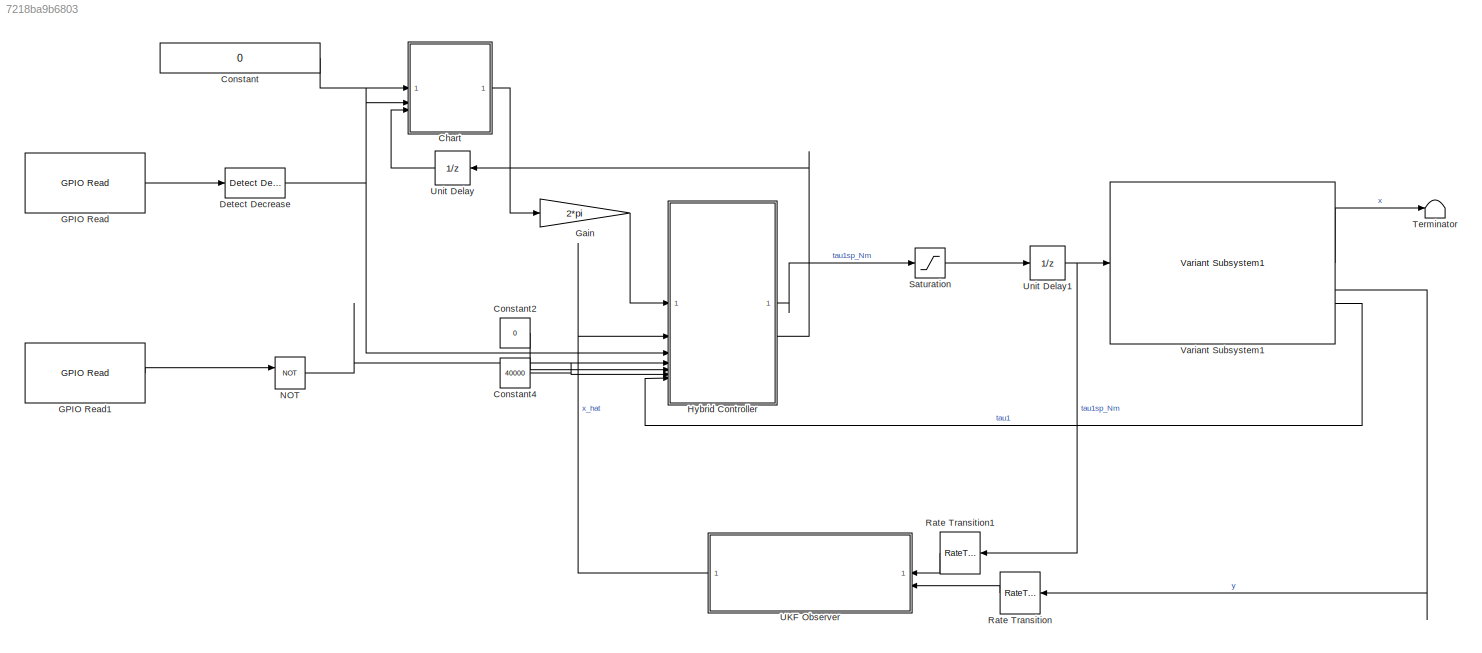
MODEL slx_7218ba9b6803
KIND model
CONFIG AbsTol = auto
CONFIG EnableMultiTasking = on
CONFIG FixedStep = 0.001
CONFIG InitFcn = if isempty(matlab.project.rootProject)\n    openProject('<userpath>/MATLAB/projects/digtwin_labo/digtwin_labo.prj');\nend\nprj = matlab.project.rootProject;\n\n%% Physical parameters\nload(fullfile(prj.RootFolder, 'data', 'RRpendulum_params_BLDC.mat'), 'params');\n\n%% Controller design (LQR gains)\nload(fullfile(prj.RootFolder, 'data', 'FSFB_torque_design.mat'), 'design');\nfsf_par = design.par;\n\n%% UKF ob...<+252ch>
CONFIG MaxStep = auto
CONFIG MinStep = auto
CONFIG PreLoadFcn = clear;\n\nif isempty(matlab.project.rootProject)\n    openProject('<userpath>/MATLAB/projects/digtwin_labo/digtwin_labo.prj');\nend\nprj = matlab.project.rootProject;\n\n%% Physical parameters\nload(fullfile(prj.RootFolder, 'data', 'RRpendulum_params_BLDC.mat'), 'params');\n\n%% Controller design (LQR gains)\nload(fullfile(prj.RootFolder, 'data', 'FSFB_torque_design.mat'), 'design');\nfsf_par = design.par;\n\n%...<+260ch>
CONFIG RelTol = 1e-3
CONFIG SampleTimeConstraint = Unconstrained
CONFIG SolverName = FixedStepAuto
CONFIG StartTime = 0.0
CONFIG StopTime = inf
WORKSPACE source: mxarray member
WORKSPACE COUNTS_PER_TURN_MOT = 8192
WORKSPACE COUNTS_PER_TURN_PEND = 2400
WORKSPACE MOTOR_VEL_RESOLUTION_DIV = 4
WORKSPACE PEND_VEL_RESOLUTION_DIV = 1
WORKSPACE T_SAMPLE = 0.001
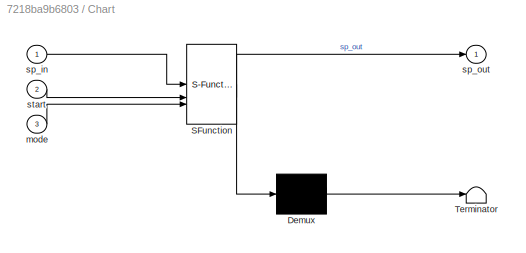
BLOCK [SubSystem] Chart
  ErrorFcn = Stateflow.Translate.translate
  PermitHierarchicalResolution = ExplicitOnly
  SFBlockType = Chart
  TreatAsAtomicUnit = on
BLOCK [Demux] Chart/ Demux 
  Outputs = 1
BLOCK [S-Function] Chart/ SFunction 
  EnableBusSupport = off
  FunctionName = sf_sfun
  PortCounts = [3 2]
  SFcnIsStateOwnerBlock = off
  SFunctionDeploymentMode = off
  Tag = Stateflow S-Function 5
BLOCK [Terminator] Chart/ Terminator 
BLOCK [Inport] Chart/mode
  Port = 3
BLOCK [Inport] Chart/sp_in
BLOCK [Outport] Chart/sp_out
BLOCK [Inport] Chart/start
  Port = 2
BLOCK [Constant] Constant
  Value = 0
BLOCK [Constant] Constant2
  Value = 0
BLOCK [Constant] Constant4
  Value = 40000
BLOCK [Reference] Detect Decrease  REF=simulink/Logic and Bit
Operations/Detect
Decrease
  SourceBlock = simulink/Logic and Bit\nOperations/Detect\nDecrease
  SourceType = Detect Decrease
BLOCK [Reference] GPIO Read  REF=raspberrypiBasiclib/GPIO Read
  SourceBlock = raspberrypiBasiclib/GPIO Read
  SourceType = codertarget.raspi.internal.RaspiGPIORead
BLOCK [Reference] GPIO Read1  REF=raspberrypiBasiclib/GPIO Read
  SourceBlock = raspberrypiBasiclib/GPIO Read
  SourceType = codertarget.raspi.internal.RaspiGPIORead
BLOCK [Gain] Gain
  Gain = 2*pi
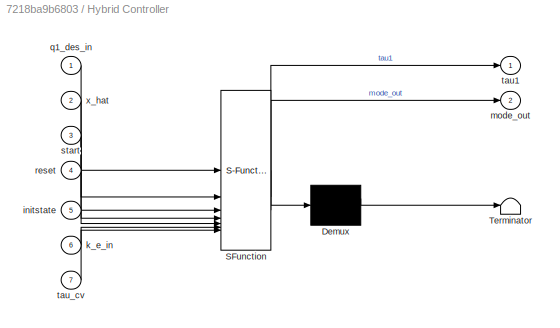
BLOCK [SubSystem] Hybrid Controller
  ErrorFcn = Stateflow.Translate.translate
  PermitHierarchicalResolution = ExplicitOnly
  SFBlockType = MATLAB Function
  TreatAsAtomicUnit = on
BLOCK [Demux] Hybrid Controller/ Demux 
  Outputs = 1
BLOCK [S-Function] Hybrid Controller/ SFunction 
  EnableBusSupport = off
  FunctionName = sf_sfun
  Parameters = swingup_par
  PortCounts = [7 3]
  SFcnIsStateOwnerBlock = off
  SFunctionDeploymentMode = off
  Tag = Stateflow S-Function 1
BLOCK [Terminator] Hybrid Controller/ Terminator 
BLOCK [Inport] Hybrid Controller/initstate
  Port = 5
BLOCK [Inport] Hybrid Controller/k_e_in
  Port = 6
BLOCK [Outport] Hybrid Controller/mode_out
  Port = 2
BLOCK [Inport] Hybrid Controller/q1_des_in
BLOCK [Inport] Hybrid Controller/reset
  Port = 4
BLOCK [Inport] Hybrid Controller/start
  Port = 3
BLOCK [Outport] Hybrid Controller/tau1
BLOCK [Inport] Hybrid Controller/tau_cv
  Port = 7
BLOCK [Inport] Hybrid Controller/x_hat
  Port = 2
BLOCK [Logic] NOT
  AllPortsSameDT = off
  IconShape = distinctive
  Operator = NOT
  OutDataTypeStr = boolean
BLOCK [RateTransition] Rate Transition
  OutPortSampleTime = ukf_par.Ts
BLOCK [RateTransition] Rate Transition1
  OutPortSampleTime = ukf_par.Ts
BLOCK [Saturate] Saturation
  LowerLimit = -params.act.u_sat
  UpperLimit = params.act.u_sat
BLOCK [Terminator] Terminator
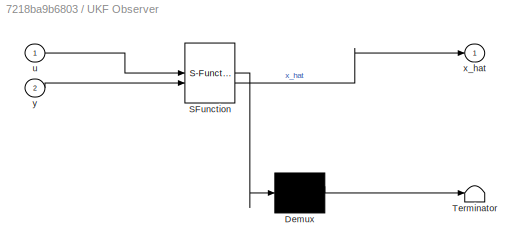
BLOCK [SubSystem] UKF Observer
  ErrorFcn = Stateflow.Translate.translate
  PermitHierarchicalResolution = ExplicitOnly
  SFBlockType = MATLAB Function
  TreatAsAtomicUnit = on
BLOCK [Demux] UKF Observer/ Demux 
  Outputs = 1
BLOCK [S-Function] UKF Observer/ SFunction 
  EnableBusSupport = off
  FunctionName = sf_sfun
  Parameters = ukf_par
  PortCounts = [2 2]
  SFcnIsStateOwnerBlock = off
  SFunctionDeploymentMode = off
  Tag = Stateflow S-Function 2
BLOCK [Terminator] UKF Observer/ Terminator 
BLOCK [Inport] UKF Observer/u
BLOCK [Outport] UKF Observer/x_hat
BLOCK [Inport] UKF Observer/y
  Port = 2
BLOCK [UnitDelay] Unit Delay
  HasFrameUpgradeWarning = on
  SampleTime = -1
BLOCK [UnitDelay] Unit Delay1
  HasFrameUpgradeWarning = on
  SampleTime = -1
BLOCK [Reference] Variant Subsystem1  REF=digtwin_labo_lib/Variant Subsystem1  (lib defined in slx_912b749dec0a)
  SourceBlock = digtwin_labo_lib/Variant Subsystem1
  SourceType = SubSystem
LINE Chart:1 -> Gain:1
LINE Constant2:1 -> Hybrid Controller:5
LINE Constant4:1 -> Hybrid Controller:6
LINE Constant:1 -> Chart:1
NET Detect Decrease:1 -> Chart:2, Hybrid Controller:3
LINE GPIO Read1:1 -> NOT:1
LINE GPIO Read:1 -> Detect Decrease:1
LINE Gain:1 -> Hybrid Controller:1
LINE Hybrid Controller:1 -> Saturation:1
LINE Hybrid Controller:2 -> Unit Delay:1
LINE NOT:1 -> Hybrid Controller:4
LINE Rate Transition1:1 -> UKF Observer:1
LINE Rate Transition:1 -> UKF Observer:2
LINE Saturation:1 -> Unit Delay1:1
LINE UKF Observer:1 -> Hybrid Controller:2
NET Unit Delay1:1 -> Rate Transition1:1, Variant Subsystem1:1
LINE Unit Delay:1 -> Chart:3
LINE Variant Subsystem1:1 -> Terminator:1
LINE Variant Subsystem1:2 -> Rate Transition:1
LINE Variant Subsystem1:3 -> Hybrid Controller:7
note: NET lines group one-source signal fan-out (src -> all destinations, sorted); 1:1 wires keep LINE
CHART Hybrid Controller states=1 transitions=1
  STATE_LABEL 'eML_blk_kernel()'
  STATE_LABEL 'SCRIPT:\nfunction [tau1, mode_out] = fcn(q1_des_in, x_hat, swingup_par, start, reset, initstate, k_e_in, tau_cv)\n%#codegen\n% Three-phase hybrid controller: swing-up -> stabilize -> FSFB+trajectory\n\n\npersistent mode q1_ref q1_des dwell_count dropped_count mode_count\nif isempty(mode)\n    mode = int8(initstate);          % 0=off, 1=stabilize, 2=FSFB+trajectory, 3=swing-up, 4=damping\n    q1_ref = 0.0;\n...<+3608ch>'
CHART UKF Observer states=1 transitions=1
  STATE_LABEL 'eML_blk_kernel()'
  STATE_LABEL 'SCRIPT:\nfunction x_hat = UKF_Observer(u, y, ukf_par)\n%#codegen\n    persistent x_est P_est isInit\n\n    ukf_Q       = ukf_par.noise.Q;\n    ukf_R       = ukf_par.noise.R;\n    ukf_Wm      = ukf_par.sigma.Wm;\n    ukf_Wc      = ukf_par.sigma.Wc;\n    ukf_lambda  = ukf_par.sigma.lambda;\n    ukf_C       = ukf_par.measurement.C;\n    ukf_Ts      = ukf_par.Ts;\n    ukf_x0      = ukf_par.ic.x0;\n    ukf_P0      ...<+423ch>'
CHART Chart states=6 transitions=8
  STATE_LABEL 'wait\nsp_out = 0;'
  STATE_LABEL 'Stabilize'
  STATE_LABEL 'stabilized0\nsp_out = sp_in\n'
  STATE_LABEL 'stabilized1\nsp_out = sp_in + 0.25\n'
  STATE_LABEL 'stabilized3\nsp_out = sp_in - 0.25\n'
  STATE_LABEL 'stabilized2\nsp_out = sp_in\n'
  STATE_LABEL "after(0.5,'sec') [start]"
  STATE_LABEL "after(0.5,'sec') [start]"
  STATE_LABEL "after(0.5,'sec') [start]"
  STATE_LABEL "after(0.5,'sec') [start]"
  STATE_LABEL 'stabilized0\nsp_out = sp_in\n'
  STATE_LABEL 'stabilized1\nsp_out = sp_in + 0.25\n'
  STATE_LABEL 'stabilized3\nsp_out = sp_in - 0.25\n'
  STATE_LABEL 'stabilized2\nsp_out = sp_in\n'
CHART  states=0 transitions=0
CHART  states=0 transitions=0
CHART  states=0 transitions=0
